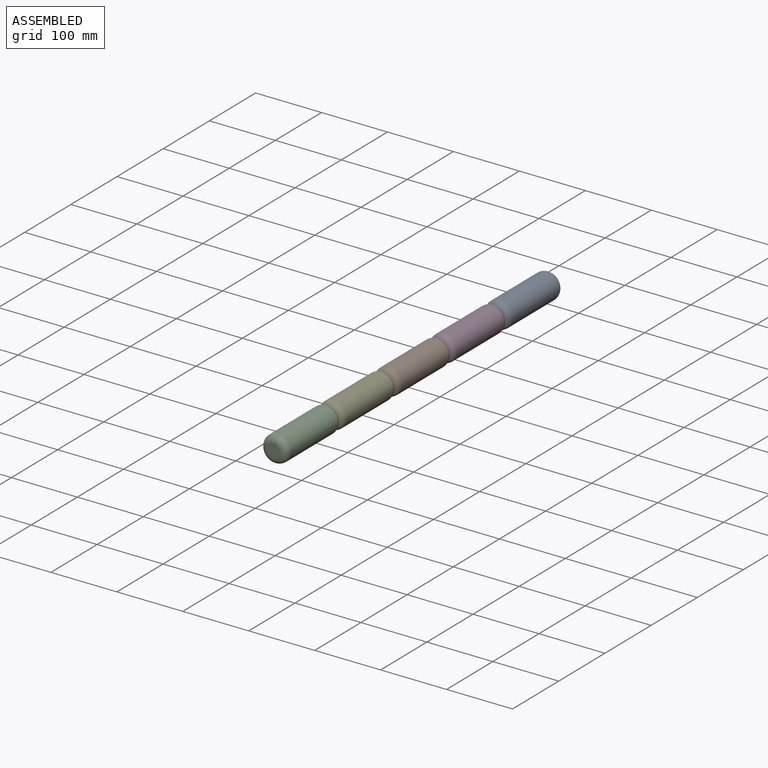
[diagram: assembled view]
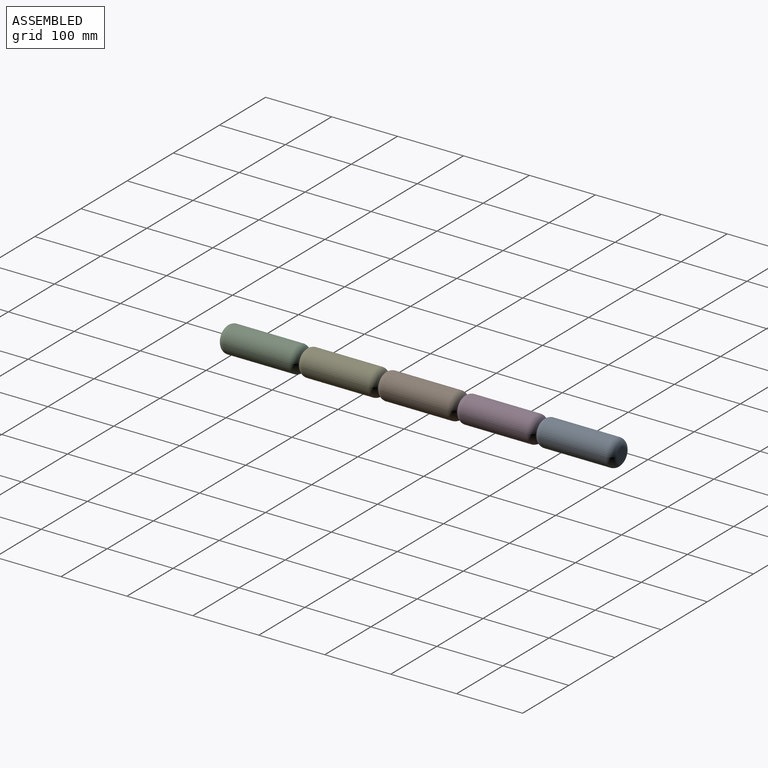
[diagram: assembled view, second angle]
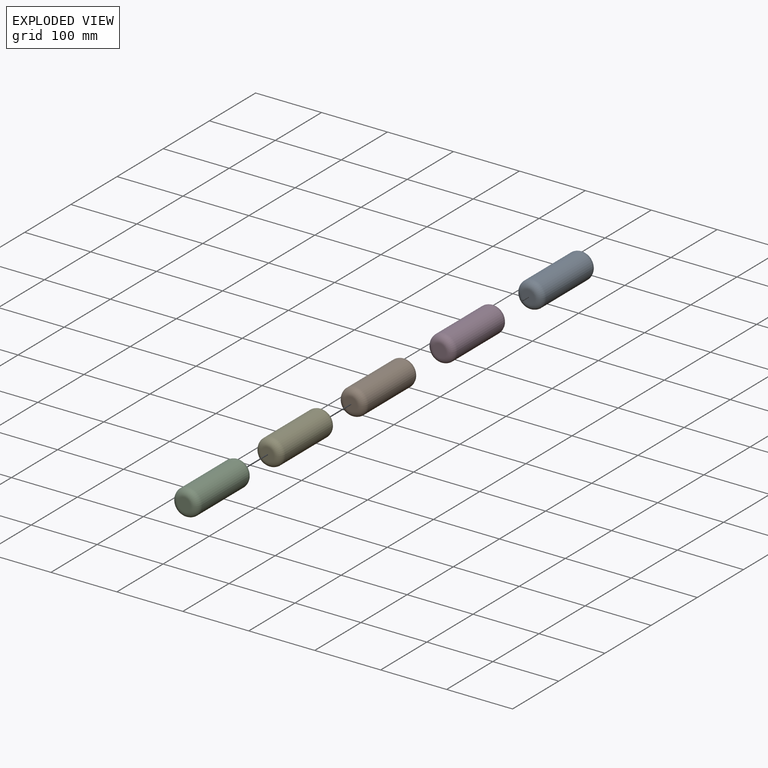
[diagram: exploded view]
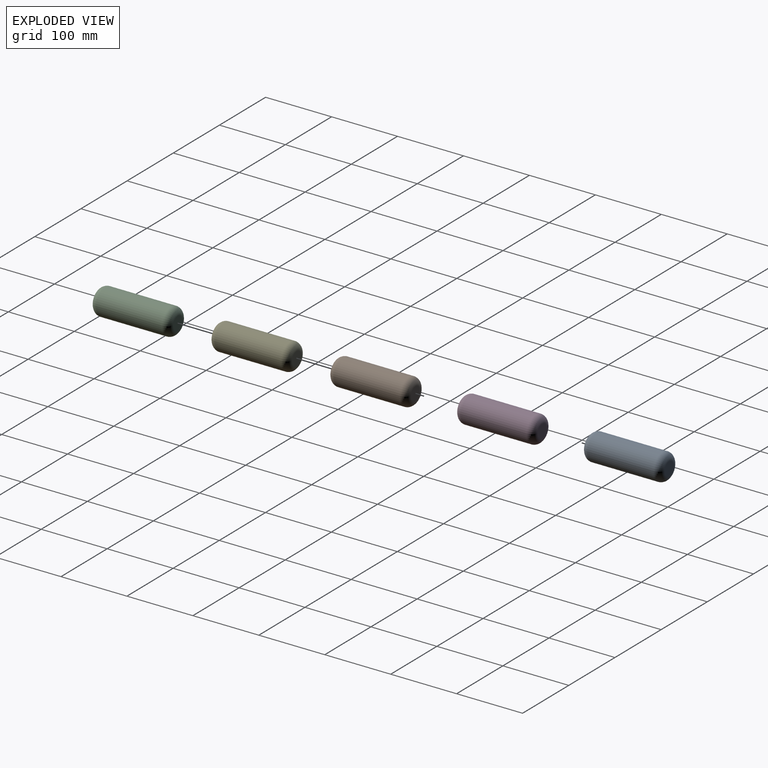
[diagram: exploded view, second angle]
ASSEMBLY  parts=5 mates=4
PART A: 5 faces, bbox 43.3x120x43.3 mm
  f0: cylinder r=20mm len=100mm, axis (0,1,0), area 12566.4mm2, adj f3,f4
  f1: plane 20x20mm, normal (0,-1,0), area 314.2mm2, adj f4
  f2: plane 20x20mm, normal (0,1,0), area 314.2mm2, adj f3
  f3: torus R=10mm, axis (0,-1,0), area 1615.3mm2, adj f0,f2
  f4: torus R=10mm, axis (0,-1,0), area 1615.3mm2, adj f0,f1
PART B: same geometry as A
PART C: same geometry as A
PART D: same geometry as A
PART E: same geometry as A
PLACE A t=(57.13,299.98,77.99)mm
PLACE B t=(57.13,59.98,77.99)mm
PLACE C t=(57.13,-180.02,77.99)mm
PLACE D t=(57.13,179.98,77.99)mm
PLACE E t=(57.13,-60.02,77.99)mm
MATE ball C.f0 <-> E.f0  axis (0,1,0) through (57.13,-180.02,77.99)mm
MATE ball E.f0 <-> B.f0  axis (0,1,0) through (57.13,-60.02,77.99)mm
MATE ball D.f0 <-> A.f0  axis (0,1,0) through (57.13,179.98,77.99)mm
MATE ball B.f0 <-> D.f0  axis (0,1,0) through (57.13,59.98,77.99)mm
